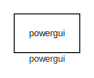
[diagram: root canvas - part 1/2, top left region]
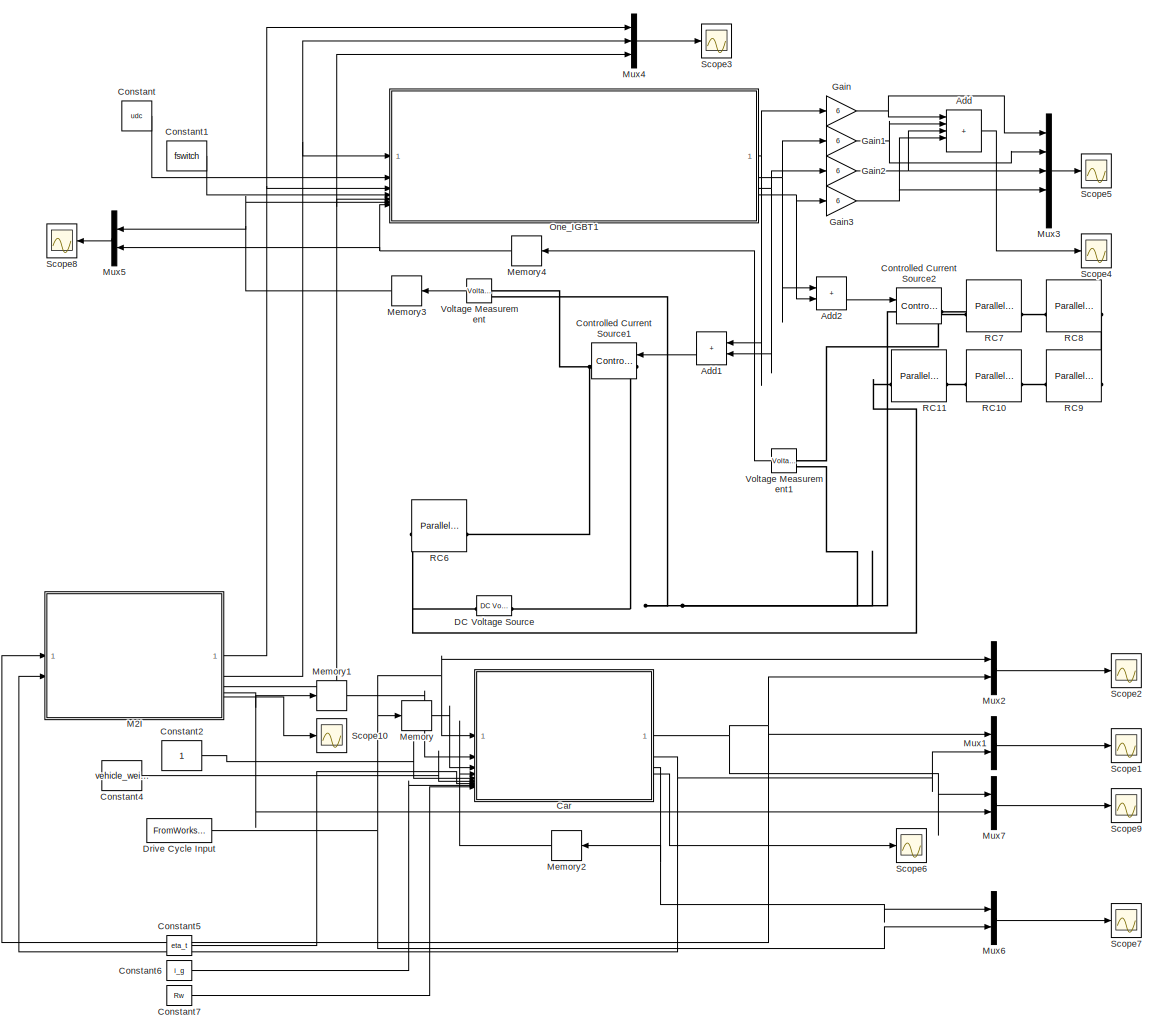
[diagram: root canvas - part 2/2, most of the canvas]
MODEL slx_3a7336b0758d
KIND model
CONFIG AbsTol = auto
CONFIG EnableMultiTasking = on
CONFIG FixedStep = auto
CONFIG MaxStep = auto
CONFIG MinStep = auto
CONFIG RelTol = 1e-3
CONFIG SampleTimeConstraint = Unconstrained
CONFIG SolverName = ode45
CONFIG StartTime = 0.0
CONFIG StopTime = time
BLOCK [Sum] Add
  IconShape = rectangular
  Inputs = +++++
BLOCK [Sum] Add1
  IconShape = rectangular
BLOCK [Sum] Add2
  IconShape = rectangular
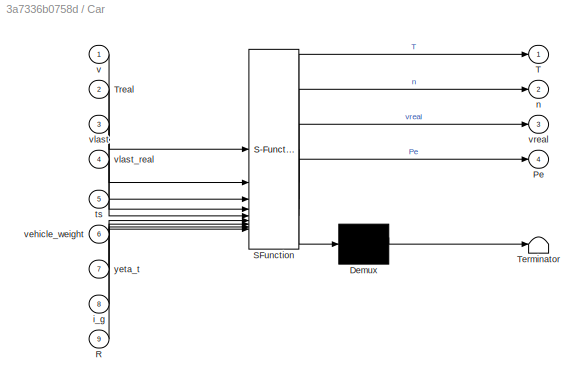
BLOCK [SubSystem] Car
  ErrorFcn = Stateflow.Translate.translate
  PermitHierarchicalResolution = ExplicitOnly
  SFBlockType = MATLAB Function
  TreatAsAtomicUnit = on
BLOCK [Demux] Car/ Demux 
  Outputs = 1
BLOCK [S-Function] Car/ SFunction 
  EnableBusSupport = on
  FunctionName = sf_sfun
  PortCounts = [9 5]
  SFcnIsStateOwnerBlock = off
  SFunctionDeploymentMode = off
  Tag = Stateflow S-Function 2
BLOCK [Terminator] Car/ Terminator 
BLOCK [Outport] Car/Pe
  Port = 4
  VectorParamsAs1DForOutWhenUnconnected = off
BLOCK [Inport] Car/R
  Port = 9
BLOCK [Outport] Car/T
  VectorParamsAs1DForOutWhenUnconnected = off
BLOCK [Inport] Car/Treal
  Port = 2
BLOCK [Inport] Car/i_g
  Port = 8
BLOCK [Outport] Car/n
  Port = 2
  VectorParamsAs1DForOutWhenUnconnected = off
BLOCK [Inport] Car/ts
  Port = 5
BLOCK [Inport] Car/v
BLOCK [Inport] Car/vehicle_weight
  Port = 6
BLOCK [Inport] Car/vlast
  Port = 3
BLOCK [Inport] Car/vlast_real
  Port = 4
BLOCK [Outport] Car/vreal
  Port = 3
  VectorParamsAs1DForOutWhenUnconnected = off
BLOCK [Inport] Car/yeta_t
  Port = 7
BLOCK [Constant] Constant
  Value = udc
BLOCK [Constant] Constant1
  Value = fswitch
BLOCK [Constant] Constant2
BLOCK [Constant] Constant4
  Value = vehicle_weight
BLOCK [Constant] Constant5
  Value = eta_t
BLOCK [Constant] Constant6
  Value = i_g
BLOCK [Constant] Constant7
  Value = Rw
BLOCK [Reference] Controlled Current Source1  REF=spsControlledCurrentSourceLib/Controlled Current Source
  LibrarySourceBlock = sps_lib/Sources/Controlled Current Source
  NameLocation = top
  SourceBlock = spsControlledCurrentSourceLib/Controlled Current Source
  SourceType = Controlled Current Source
BLOCK [Reference] Controlled Current Source2  REF=spsControlledCurrentSourceLib/Controlled Current Source
  LibrarySourceBlock = sps_lib/Sources/Controlled Current Source
  NameLocation = top
  SourceBlock = spsControlledCurrentSourceLib/Controlled Current Source
  SourceType = Controlled Current Source
BLOCK [Reference] DC Voltage Source  REF=spsDCVoltageSourceLib/DC Voltage Source
  LibrarySourceBlock = sps_lib/Sources/DC Voltage Source
  NameLocation = top
  SourceBlock = spsDCVoltageSourceLib/DC Voltage Source
  SourceType = DC Voltage Source
BLOCK [FromWorkspace] Drive Cycle Input
  OutputAfterFinalValue = Setting to zero
  SampleTime = -1
  VariableName = DRIVING_CYCLE
BLOCK [Gain] Gain
  Gain = 6
BLOCK [Gain] Gain1
  Gain = 6
BLOCK [Gain] Gain2
  Gain = 6
BLOCK [Gain] Gain3
  Gain = 6
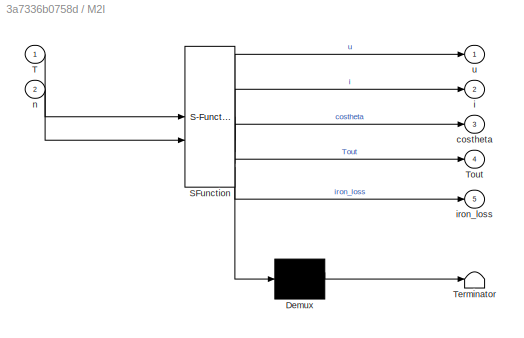
BLOCK [SubSystem] M2I
  ErrorFcn = Stateflow.Translate.translate
  PermitHierarchicalResolution = ExplicitOnly
  SFBlockType = MATLAB Function
  TreatAsAtomicUnit = on
BLOCK [Demux] M2I/ Demux 
  Outputs = 1
BLOCK [S-Function] M2I/ SFunction 
  EnableBusSupport = on
  FunctionName = sf_sfun
  PortCounts = [2 6]
  SFcnIsStateOwnerBlock = off
  SFunctionDeploymentMode = off
  Tag = Stateflow S-Function 1
BLOCK [Terminator] M2I/ Terminator 
BLOCK [Inport] M2I/T
BLOCK [Outport] M2I/Tout
  Port = 4
  VectorParamsAs1DForOutWhenUnconnected = off
BLOCK [Outport] M2I/costheta
  Port = 3
  VectorParamsAs1DForOutWhenUnconnected = off
BLOCK [Outport] M2I/i
  Port = 2
  VectorParamsAs1DForOutWhenUnconnected = off
BLOCK [Outport] M2I/iron_loss
  Port = 5
  VectorParamsAs1DForOutWhenUnconnected = off
BLOCK [Inport] M2I/n
  Port = 2
BLOCK [Outport] M2I/u
  VectorParamsAs1DForOutWhenUnconnected = off
BLOCK [Memory] Memory
  InheritSampleTime = on
  NameLocation = top
BLOCK [Memory] Memory1
  InheritSampleTime = on
  NameLocation = top
BLOCK [Memory] Memory2
  InheritSampleTime = on
  NameLocation = top
BLOCK [Memory] Memory3
  InheritSampleTime = on
  InitialCondition = 25
  NameLocation = top
BLOCK [Memory] Memory4
  InheritSampleTime = on
  InitialCondition = 25
  NameLocation = top
BLOCK [Mux] Mux1
  DisplayOption = bar
  Inputs = 2
BLOCK [Mux] Mux2
  DisplayOption = bar
  Inputs = 2
BLOCK [Mux] Mux3
  DisplayOption = bar
  Inputs = 5
BLOCK [Mux] Mux4
  DisplayOption = bar
  Inputs = 3
BLOCK [Mux] Mux5
  DisplayOption = bar
  Inputs = 2
BLOCK [Mux] Mux6
  DisplayOption = bar
  Inputs = 2
BLOCK [Mux] Mux7
  DisplayOption = bar
  Inputs = 2
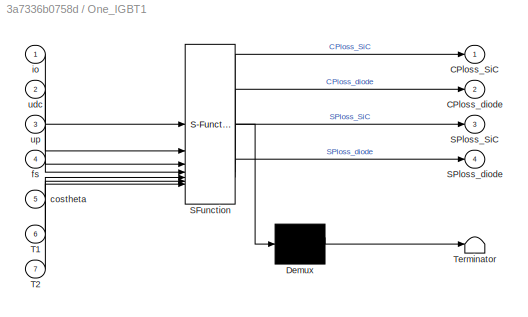
BLOCK [SubSystem] One_IGBT1
  ErrorFcn = Stateflow.Translate.translate
  PermitHierarchicalResolution = ExplicitOnly
  SFBlockType = MATLAB Function
  TreatAsAtomicUnit = on
BLOCK [Demux] One_IGBT1/ Demux 
  Outputs = 1
BLOCK [S-Function] One_IGBT1/ SFunction 
  EnableBusSupport = on
  FunctionName = sf_sfun
  PortCounts = [7 5]
  SFcnIsStateOwnerBlock = off
  SFunctionDeploymentMode = off
  Tag = Stateflow S-Function 4
BLOCK [Terminator] One_IGBT1/ Terminator 
BLOCK [Outport] One_IGBT1/CPloss_SiC
  VectorParamsAs1DForOutWhenUnconnected = off
BLOCK [Outport] One_IGBT1/CPloss_diode
  Port = 2
  VectorParamsAs1DForOutWhenUnconnected = off
BLOCK [Outport] One_IGBT1/SPloss_SiC
  Port = 3
  VectorParamsAs1DForOutWhenUnconnected = off
BLOCK [Outport] One_IGBT1/SPloss_diode
  Port = 4
  VectorParamsAs1DForOutWhenUnconnected = off
BLOCK [Inport] One_IGBT1/T1
  Port = 6
BLOCK [Inport] One_IGBT1/T2
  Port = 7
BLOCK [Inport] One_IGBT1/costheta
  Port = 5
BLOCK [Inport] One_IGBT1/fs
  Port = 4
BLOCK [Inport] One_IGBT1/io
BLOCK [Inport] One_IGBT1/udc
  Port = 2
BLOCK [Inport] One_IGBT1/up
  Port = 3
BLOCK [Reference] RC10  REF=spsParallelRLCBranchLib/Parallel RLC Branch
  AttributesFormatString = \n
  LibrarySourceBlock = sps_lib/Passives/Parallel RLC Branch
  SourceBlock = spsParallelRLCBranchLib/Parallel RLC Branch
  SourceType = Parallel RLC Branch
BLOCK [Reference] RC11  REF=spsParallelRLCBranchLib/Parallel RLC Branch
  AttributesFormatString = \n
  LibrarySourceBlock = sps_lib/Passives/Parallel RLC Branch
  SourceBlock = spsParallelRLCBranchLib/Parallel RLC Branch
  SourceType = Parallel RLC Branch
BLOCK [Reference] RC6  REF=spsParallelRLCBranchLib/Parallel RLC Branch
  AttributesFormatString = \n
  LibrarySourceBlock = sps_lib/Passives/Parallel RLC Branch
  SourceBlock = spsParallelRLCBranchLib/Parallel RLC Branch
  SourceType = Parallel RLC Branch
BLOCK [Reference] RC7  REF=spsParallelRLCBranchLib/Parallel RLC Branch
  AttributesFormatString = \n
  LibrarySourceBlock = sps_lib/Passives/Parallel RLC Branch
  SourceBlock = spsParallelRLCBranchLib/Parallel RLC Branch
  SourceType = Parallel RLC Branch
BLOCK [Reference] RC8  REF=spsParallelRLCBranchLib/Parallel RLC Branch
  AttributesFormatString = \n
  LibrarySourceBlock = sps_lib/Passives/Parallel RLC Branch
  SourceBlock = spsParallelRLCBranchLib/Parallel RLC Branch
  SourceType = Parallel RLC Branch
BLOCK [Reference] RC9  REF=spsParallelRLCBranchLib/Parallel RLC Branch
  AttributesFormatString = \n
  LibrarySourceBlock = sps_lib/Passives/Parallel RLC Branch
  SourceBlock = spsParallelRLCBranchLib/Parallel RLC Branch
  SourceType = Parallel RLC Branch
BLOCK [Scope] Scope1
  Floating = off
  NumInputPorts = 1
  ScopeSpecificationString = Simulink.scopes.TimeScopeBlockCfg('CurrentConfiguration', extmgr.ConfigurationSet(extmgr.Configuration('Core','General UI',true),extmgr.Configuration('Core','Source UI',true),extmgr.Configuration('Sources','WiredSimulink',true,'DataLogging',true,'DataLoggingVariableName','nT','DataLoggingSaveFormat','Array','DataLoggingDecimation','1','DataLoggingDecimateData',true),extmgr.Configuration('Visuals',...<+1800ch>
BLOCK [Scope] Scope10
  Floating = off
  NumInputPorts = 1
  ScopeSpecificationString = Simulink.scopes.TimeScopeBlockCfg('CurrentConfiguration', extmgr.ConfigurationSet(extmgr.Configuration('Core','General UI',true),extmgr.Configuration('Core','Source UI',true),extmgr.Configuration('Sources','WiredSimulink',true,'DataLogging',true,'DataLoggingVariableName','iron_loss','DataLoggingSaveFormat','Array','DataLoggingDecimation','1','DataLoggingDecimateData',true),extmgr.Configuration('Vi...<+1807ch>
BLOCK [Scope] Scope2
  Floating = off
  NumInputPorts = 1
  ScopeSpecificationString = Simulink.scopes.TimeScopeBlockCfg('CurrentConfiguration', extmgr.ConfigurationSet(extmgr.Configuration('Core','General UI',true),extmgr.Configuration('Core','Source UI',true),extmgr.Configuration('Sources','WiredSimulink',true,'DataLogging',true,'DataLoggingVariableName','VT','DataLoggingSaveFormat','Array','DataLoggingDecimation','1','DataLoggingDecimateData',true),extmgr.Configuration('Visuals',...<+1810ch>
BLOCK [Scope] Scope3
  Floating = off
  NumInputPorts = 1
  ScopeSpecificationString = Simulink.scopes.TimeScopeBlockCfg('CurrentConfiguration', extmgr.ConfigurationSet(extmgr.Configuration('Core','General UI',true),extmgr.Configuration('Core','Source UI',true),extmgr.Configuration('Sources','WiredSimulink',true,'DataLogging',true,'DataLoggingVariableName','uicos','DataLoggingSaveFormat','Array','DataLoggingDecimation','1','DataLoggingDecimateData',true),extmgr.Configuration('Visual...<+1812ch>
BLOCK [Scope] Scope4
  Floating = off
  NumInputPorts = 1
  ScopeSpecificationString = Simulink.scopes.TimeScopeBlockCfg('CurrentConfiguration', extmgr.ConfigurationSet(extmgr.Configuration('Core','General UI',true),extmgr.Configuration('Core','Source UI',true),extmgr.Configuration('Sources','WiredSimulink',true,'DataLogging',true,'DataLoggingVariableName','Ploss','DataLoggingSaveFormat','Array','DataLoggingDecimation','1','DataLoggingDecimateData',true),extmgr.Configuration('Visual...<+1714ch>
BLOCK [Scope] Scope5
  Floating = off
  NumInputPorts = 1
  ScopeSpecificationString = Simulink.scopes.TimeScopeBlockCfg('CurrentConfiguration', extmgr.ConfigurationSet(extmgr.Configuration('Core','General UI',true),extmgr.Configuration('Core','Source UI',true),extmgr.Configuration('Sources','WiredSimulink',true,'DataLogging',true,'DataLoggingVariableName','CandSloss','DataLoggingSaveFormat','Array','DataLoggingDecimation','1','DataLoggingDecimateData',true),extmgr.Configuration('Vi...<+1726ch>
BLOCK [Scope] Scope6
  Floating = off
  NumInputPorts = 1
  ScopeSpecificationString = Simulink.scopes.TimeScopeBlockCfg('CurrentConfiguration', extmgr.ConfigurationSet(extmgr.Configuration('Core','General UI',true),extmgr.Configuration('Core','Source UI',true),extmgr.Configuration('Sources','WiredSimulink',true,'DataLogging',true,'DataLoggingVariableName','P','DataLoggingSaveFormat','Array','DataLoggingDecimation','1','DataLoggingDecimateData',true),extmgr.Configuration('Visuals','...<+1729ch>
BLOCK [Scope] Scope7
  Floating = off
  NumInputPorts = 1
  ScopeSpecificationString = Simulink.scopes.TimeScopeBlockCfg('CurrentConfiguration', extmgr.ConfigurationSet(extmgr.Configuration('Core','General UI',true),extmgr.Configuration('Core','Source UI',true),extmgr.Configuration('Sources','WiredSimulink',true,'DataLogging',true,'DataLoggingVariableName','ScopeData1','DataLoggingSaveFormat','Array','DataLoggingDecimation','1','DataLoggingDecimateData',true),extmgr.Configuration('V...<+1735ch>
BLOCK [Scope] Scope8
  Floating = off
  NumInputPorts = 1
  ScopeSpecificationString = Simulink.scopes.TimeScopeBlockCfg('CurrentConfiguration', extmgr.ConfigurationSet(extmgr.Configuration('Core','General UI',true),extmgr.Configuration('Core','Source UI',true),extmgr.Configuration('Sources','WiredSimulink',true,'DataLogging',true,'DataLoggingVariableName','Tj','DataLoggingSaveFormat','Array','DataLoggingDecimation','1','DataLoggingDecimateData',true),extmgr.Configuration('Visuals',...<+1721ch>
BLOCK [Scope] Scope9
  Floating = off
  NumInputPorts = 1
  ScopeSpecificationString = Simulink.scopes.TimeScopeBlockCfg('CurrentConfiguration', extmgr.ConfigurationSet(extmgr.Configuration('Core','General UI',true),extmgr.Configuration('Core','Source UI',true),extmgr.Configuration('Sources','WiredSimulink',true,'DataLoggingVariableName','ScopeData1','DataLoggingSaveFormat','Array','DataLoggingDecimation','1','DataLoggingDecimateData',true),extmgr.Configuration('Visuals','Time Domai...<+1709ch>
BLOCK [Reference] Voltage Measurement  REF=spsVoltageMeasurementLib/Voltage Measurement
  LibrarySourceBlock = sps_lib/Sensors and Measurements/Voltage Measurement
  SourceBlock = spsVoltageMeasurementLib/Voltage Measurement
  SourceType = Voltage Measurement
  UserDataPersistent = on
BLOCK [Reference] Voltage Measurement1  REF=spsVoltageMeasurementLib/Voltage Measurement
  LibrarySourceBlock = sps_lib/Sensors and Measurements/Voltage Measurement
  SourceBlock = spsVoltageMeasurementLib/Voltage Measurement
  SourceType = Voltage Measurement
  UserDataPersistent = on
BLOCK [Reference] powergui  REF=sps_lib/powergui
  Priority = 1
  SourceBlock = sps_lib/powergui
  SourceType = PSB option menu block
LINE Add1:1 -> Controlled Current Source1:1
LINE Add2:1 -> Controlled Current Source2:1
LINE Add:1 -> Scope4:1
NET Car:1 -> M2I:1, Mux1:1, Mux2:2, Mux7:1
NET Car:2 -> M2I:2, Mux1:2
NET Car:3 -> Memory2:1, Mux6:1
LINE Car:4 -> Scope6:1
LINE Constant1:1 -> One_IGBT1:4
LINE Constant2:1 -> Car:5
LINE Constant4:1 -> Car:6
LINE Constant5:1 -> Car:7
LINE Constant6:1 -> Car:8
LINE Constant7:1 -> Car:9
LINE Constant:1 -> One_IGBT1:2
NET Drive Cycle Input:1 -> Car:1, Memory:1, Mux2:1, Mux6:2
NET Gain1:1 -> Add:2, Mux3:2
NET Gain2:1 -> Add:3, Mux3:3
NET Gain3:1 -> Add:4, Mux3:4
NET Gain:1 -> Add:1, Mux3:1
NET M2I:1 -> Mux4:1, One_IGBT1:3
NET M2I:2 -> Mux4:2, One_IGBT1:1
NET M2I:3 -> Mux4:3, One_IGBT1:5
NET M2I:4 -> Memory1:1, Mux7:2
LINE M2I:5 -> Scope10:1
LINE Memory1:1 -> Car:2
LINE Memory2:1 -> Car:4
NET Memory3:1 -> Mux5:1, One_IGBT1:6
NET Memory4:1 -> Mux5:2, One_IGBT1:7
LINE Memory:1 -> Car:3
LINE Mux1:1 -> Scope1:1
LINE Mux2:1 -> Scope2:1
LINE Mux3:1 -> Scope5:1
LINE Mux4:1 -> Scope3:1
LINE Mux5:1 -> Scope8:1
LINE Mux6:1 -> Scope7:1
LINE Mux7:1 -> Scope9:1
NET One_IGBT1:1 -> Add1:1, Gain:1
NET One_IGBT1:2 -> Add2:1, Gain1:1
NET One_IGBT1:3 -> Add1:2, Gain2:1
NET One_IGBT1:4 -> Add2:2, Gain3:1
LINE Voltage Measurement1:1 -> Memory4:1
LINE Voltage Measurement:1 -> Memory3:1
PNET net1: Controlled Current Source1:LConn1 -- Controlled Current Source2:LConn1 -- DC Voltage Source:LConn1 -- Voltage Measurement1:LConn2 -- Voltage Measurement:LConn2
PNET net2: Controlled Current Source1:RConn1 -- RC6:RConn1 -- Voltage Measurement:LConn1
PNET net3: Controlled Current Source2:RConn1 -- RC7:RConn1 -- Voltage Measurement1:LConn1
PNET net4: DC Voltage Source:RConn1 -- RC11:RConn1 -- RC6:LConn1
PLINE RC10:LConn1 -- RC9:RConn1
PLINE RC10:RConn1 -- RC11:LConn1
PLINE RC7:LConn1 -- RC8:RConn1
PLINE RC8:LConn1 -- RC9:LConn1
note: NET lines group one-source signal fan-out (src -> all destinations, sorted); 1:1 wires keep LINE; PNET lines group multi-terminal physical nets as a canonical sorted terminal list (undirected conserving connections); 2-terminal nets keep the pairwise PLINE form
CHART M2I states=1 transitions=1
  STATE_LABEL 'eML_blk_kernel()'
  STATE_LABEL 'SCRIPT:\nfunction [u,i,costheta,Tout,iron_loss] = ASMInverter_Pcalc(T,n)\n%%%%%%%%%%%%%%%%%%%%%%%Variable Table%%%%%%%%%%%%%%%%%%%%%%%%%%%%\n%u          SQRT(3/2)*peak value of the output phase voltage from inverter    (V)\n%i          SQRT(3/2)*peak value of the output phase current from inverter    (A)\n%costheta   power factor required by the motor                      (none)\n%T          torque requ...<+3566ch>'
CHART Car states=1 transitions=1
  STATE_LABEL 'eML_blk_kernel()'
  STATE_LABEL 'SCRIPT:\nfunction [T,n,vreal,Pe] = CarModel(v,Treal,vlast,vlast_real,ts,vehicle_weight, yeta_t, i_g, R)\n%%%%%%%%%%%%%%%%%%%%%%%%%%%%varialbe table%%%%%%%%%%%%%%%%%%%%%%%%%%%%%%%%%\n%variavle name      meaning,                                             unit\n%a,                 acceleration order of the car,                       (m/s^2)\n%v,                 speed order of the car,                   ...<+2118ch>'
CHART One_IGBT1 states=1 transitions=1
  STATE_LABEL 'eML_blk_kernel()'
  STATE_LABEL 'SCRIPT:\n%%the model defines the input and output of the loss model of one switch\n\nfunction [CPloss_SiC,CPloss_diode,SPloss_SiC,SPloss_diode] = C2M0025120D(io,udc,up,fs,costheta,T1,T2)\n%%this model is only for voltage source inverter or converter\n%%%%%%%%%%%%%%%%%%%%%%%%%%%%parameter table%%%%%%%%%%%%%%%%%%%%%%%%%%%%%%%%\n%%%%%%%%%%%%%%%%%%%%%%%%%%%%varialbe table%%%%%%%%%%%%%%%%%%%%%%%%%%%%%%%%%\n%v...<+2230ch>'
CHART  states=0 transitions=0
CHART  states=0 transitions=0
CHART  states=0 transitions=0
